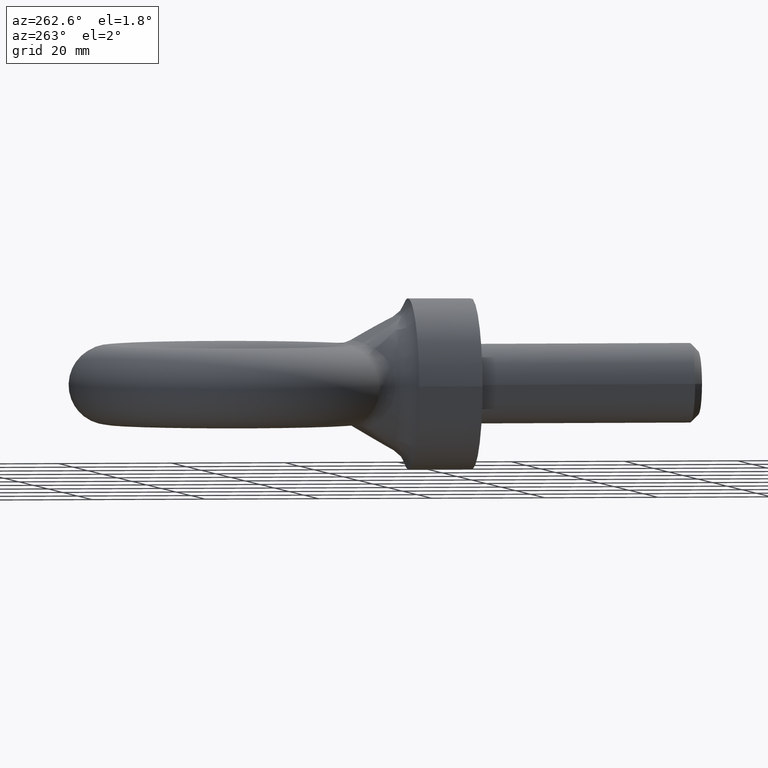
[diagram: clean part render]
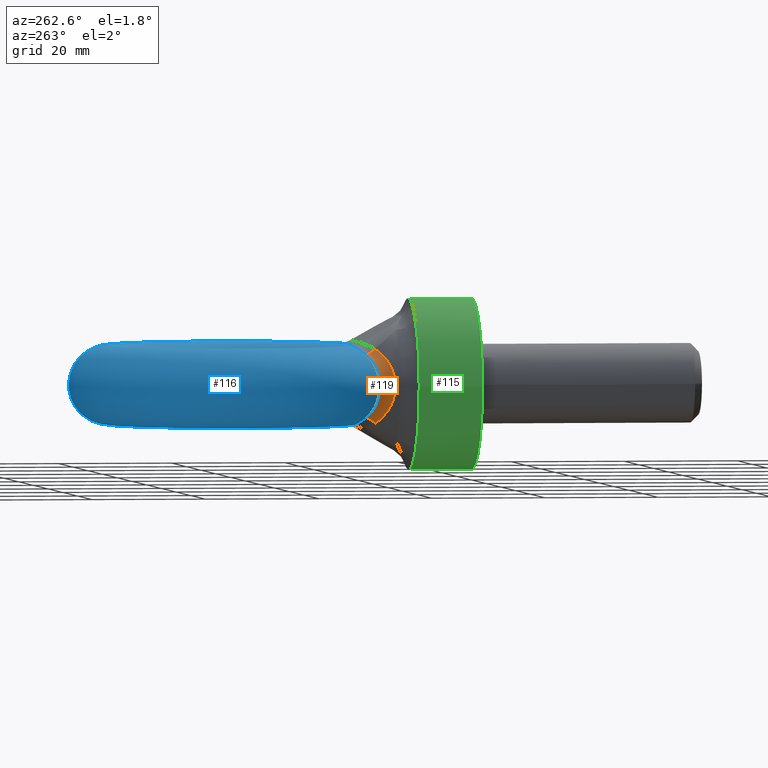
[diagram: same view with three faces highlighted in distinct colors, each labeled with its STEP entity id]
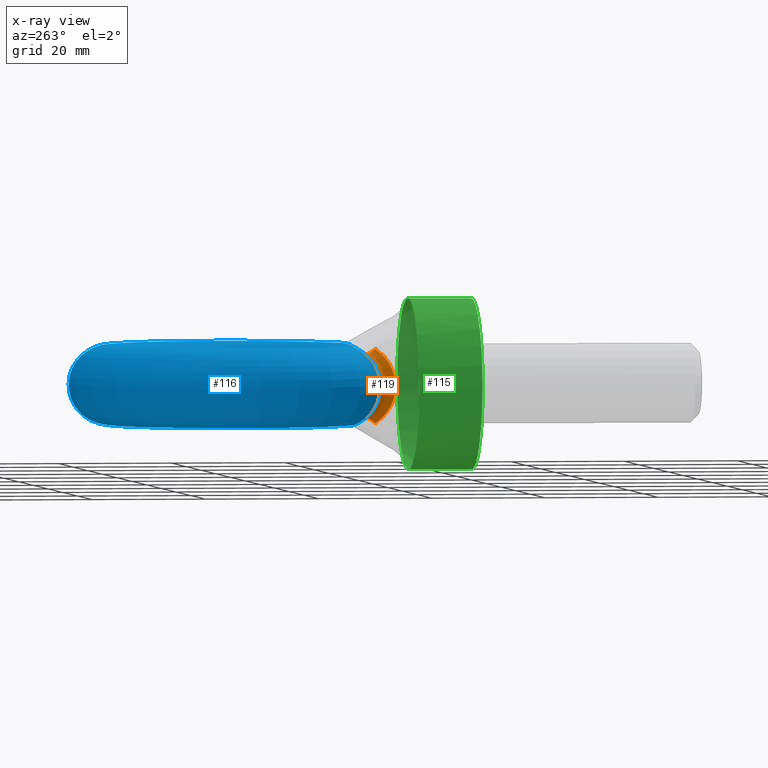
[diagram: x-ray of the same camera — body ghosted, the three highlighted faces saturated]
A machine part, auxiliary view with three faces highlighted in distinct colors.
The next image is the same camera in x-ray (body ghosted, the three faces saturated) — at least one of them is partly hidden behind the body in this view.
Their STEP definitions:

[orange] entity #119 — the highlighted face is a freeform B-spline surface patch.
#88=(
BOUNDED_SURFACE()
B_SPLINE_SURFACE(3,2,((#984,#985,#986),(#987,#988,#989),(#990,#991,#992),
(#993,#994,#995),(#996,#997,#998),(#999,#1000,#1001),(#1002,#1003,#1004),
(#1005,#1006,#1007),(#1008,#1009,#1010),(#1011,#1012,#1013)),
 .UNSPECIFIED.,.F.,.F.,.F.)
B_SPLINE_SURFACE_WITH_KNOTS((4,2,2,2,4),(3,3),(0.,0.25,0.5,0.75,1.),(0.,
1.),.UNSPECIFIED.)
GEOMETRIC_REPRESENTATION_ITEM()
RATIONAL_B_SPLINE_SURFACE(((1.,0.913392754709943,1.),(1.,0.904642203983729,
1.),(1.,0.893475314096022,1.),(1.,0.87656047780738,1.),(1.,0.871257490118609,
1.),(1.,0.871293341532296,1.),(1.,0.876662890575992,1.),(1.,0.893450768985948,
1.),(1.,0.904844948274037,1.),(1.,0.913392754709942,1.)))
REPRESENTATION_ITEM('')
SURFACE()
);
#119=ADVANCED_FACE('',(#150),#88,.T.);
#150=FACE_OUTER_BOUND('',#182,.T.);
#182=EDGE_LOOP('',(#312,#313,#314,#315));
#199=B_SPLINE_CURVE_WITH_KNOTS('',3,(#653,#654,#655,#656,#657,#658,#659,
#660,#661,#662),.UNSPECIFIED.,.F.,.F.,(4,2,2,2,4),(0.,0.25,0.5,0.75,1.),
 .UNSPECIFIED.);
#216=B_SPLINE_CURVE_WITH_KNOTS('',3,(#912,#913,#914,#915,#916,#917,#918,
#919,#920,#921),.UNSPECIFIED.,.F.,.F.,(4,2,2,2,4),(0.,0.25,0.5,0.75,1.),
 .UNSPECIFIED.);
#234=CIRCLE('',#506,3.5);
#237=CIRCLE('',#509,3.5);
#312=ORIENTED_EDGE('',*,*,#450,.T.);
#313=ORIENTED_EDGE('',*,*,#446,.F.);
#314=ORIENTED_EDGE('',*,*,#453,.F.);
#315=ORIENTED_EDGE('',*,*,#413,.F.);
#374=VERTEX_POINT('',#647);
#377=VERTEX_POINT('',#652);
#402=VERTEX_POINT('',#911);
#403=VERTEX_POINT('',#922);
#413=EDGE_CURVE('',#377,#374,#199,.T.);
#446=EDGE_CURVE('',#402,#403,#216,.T.);
#450=EDGE_CURVE('',#377,#403,#234,.T.);
#453=EDGE_CURVE('',#374,#402,#237,.T.);
#506=AXIS2_PLACEMENT_3D('',#944,#589,#590);
#509=AXIS2_PLACEMENT_3D('',#983,#595,#596);
#589=DIRECTION('',(0.356330166981346,0.703356259530989,0.61507624265421));
#590=DIRECTION('',(0.,-0.65828606888216,0.752767860309985));
#595=DIRECTION('',(-0.356330166981346,-0.70335625953099,0.61507624265421));
#596=DIRECTION('',(0.,-0.658286068882159,-0.752767860309985));
#647=CARTESIAN_POINT('',(-11.2486904393033,18.5002916994564,-6.51666812111264));
#652=CARTESIAN_POINT('',(-11.2486904393033,18.5002916994564,6.51666812111264));
#653=CARTESIAN_POINT('',(-11.2486904393033,18.5002916994564,6.51666812111264));
#654=CARTESIAN_POINT('',(-11.6623358228336,17.4639772845574,5.802657712035));
#655=CARTESIAN_POINT('',(-12.1136935065169,16.6208863515954,4.86058440901751));
#656=CARTESIAN_POINT('',(-12.7865535905403,15.4528421661689,2.62123986755395));
#657=CARTESIAN_POINT('',(-12.9991597736582,15.1338155355486,1.31565307058173));
#658=CARTESIAN_POINT('',(-13.0008348904542,15.1311973147023,-1.2989957561036));
#659=CARTESIAN_POINT('',(-12.7900726844899,15.4469000540264,-2.60807717894533));
#660=CARTESIAN_POINT('',(-12.1128189366211,16.6222383810343,-4.86494021078418));
#661=CARTESIAN_POINT('',(-11.6624406806828,17.4637145819987,-5.80247671256354));
#662=CARTESIAN_POINT('',(-11.2486904393033,18.5002916994564,-6.51666812111264));
#911=CARTESIAN_POINT('',(-13.1700984098487,20.3504339342132,-5.51410379478761));
#912=CARTESIAN_POINT('',(-13.1700984098487,20.3504339342132,-5.51410379478762));
#913=CARTESIAN_POINT('',(-13.5311499354151,19.5875743848866,-4.85720153579599));
#914=CARTESIAN_POINT('',(-13.9369447810974,19.0411662719369,-4.01839820938225));
#915=CARTESIAN_POINT('',(-14.5170115519335,18.3049590635211,-2.10782574195739));
#916=CARTESIAN_POINT('',(-14.6867699176338,18.1251309909643,-1.05019946336415));
#917=CARTESIAN_POINT('',(-14.6855358323789,18.1265176213641,1.0622971226889));
#918=CARTESIAN_POINT('',(-14.5134344280293,18.3093340917136,2.12119600553682));
#919=CARTESIAN_POINT('',(-13.9375313061204,19.0405877007732,4.01486983928252));
#920=CARTESIAN_POINT('',(-13.5314864124523,19.5868634483503,4.85658934470907));
#921=CARTESIAN_POINT('',(-13.1700984098487,20.3504339342132,5.51410379478761));
#922=CARTESIAN_POINT('',(-13.1700984098487,20.3504339342132,5.51410379478761));
#944=CARTESIAN_POINT('',(-14.2771840191158,18.5002916994564,8.27115569218142));
#983=CARTESIAN_POINT('',(-14.2771840191158,18.5002916994564,-8.27115569218142));
#984=CARTESIAN_POINT('',(-11.2486904393033,18.5002916994564,-6.51666812111264));
#985=CARTESIAN_POINT('',(-11.7986709065649,19.6091090087798,-5.56732408380537));
#986=CARTESIAN_POINT('',(-13.1700984098487,20.3504339342132,-5.51410379478762));
#987=CARTESIAN_POINT('',(-11.7021491259055,17.3642321927048,-5.73393432252081));
#988=CARTESIAN_POINT('',(-12.1312173262428,18.7036221519737,-4.8392547653287));
#989=CARTESIAN_POINT('',(-13.5343475397831,19.5808182379804,-4.851383780051));
#990=CARTESIAN_POINT('',(-12.1583174325722,16.5393674643555,-4.74950898722217));
#991=CARTESIAN_POINT('',(-12.4506670415446,18.0997739310594,-3.95066209335268));
#992=CARTESIAN_POINT('',(-13.9368035559345,19.0413504918593,-4.01881529692211));
#993=CARTESIAN_POINT('',(-12.8131895733227,15.4111267148406,-2.49092179102195));
#994=CARTESIAN_POINT('',(-12.8875955368394,17.287386271559,-2.02082466463799));
#995=CARTESIAN_POINT('',(-14.5170633925506,18.304888289145,-2.10770305389984));
#996=CARTESIAN_POINT('',(-13.0006483882137,15.1314888197801,-1.24113022471386));
#997=CARTESIAN_POINT('',(-13.0004062075089,17.1033762705007,-1.00935489759802));
#998=CARTESIAN_POINT('',(-14.6867374891539,18.1251674278515,-1.05018711321924));
#999=CARTESIAN_POINT('',(-12.9993480831083,15.1335212057881,1.25467611870513));
#1000=CARTESIAN_POINT('',(-12.9995915986211,17.1047728053591,1.02032917035512));
#1001=CARTESIAN_POINT('',(-14.6855686224941,18.1264807781399,1.06164902351955));
#1002=CARTESIAN_POINT('',(-12.8092944405484,15.4176597284355,2.50609331086425));
#1003=CARTESIAN_POINT('',(-12.8850008157813,17.2920953529502,2.03381468433674));
#1004=CARTESIAN_POINT('',(-14.5135966443351,18.3091408358002,2.12054049351642));
#1005=CARTESIAN_POINT('',(-12.1591975286093,16.5380297063062,4.74472793821555));
#1006=CARTESIAN_POINT('',(-12.4511890808524,18.0989169766656,3.9468485091517));
#1007=CARTESIAN_POINT('',(-13.9375988546563,19.0404892176048,4.01476979416649));
#1008=CARTESIAN_POINT('',(-11.6934923598457,17.3859201715593,5.7488771245483));
#1009=CARTESIAN_POINT('',(-12.1248163885331,18.7210511935878,4.85326882728907));
#1010=CARTESIAN_POINT('',(-13.527008710846,19.5963243244585,4.86473615017824));
#1011=CARTESIAN_POINT('',(-11.2486904393033,18.5002916994564,6.51666812111264));
#1012=CARTESIAN_POINT('',(-11.7986709065649,19.6091090087798,5.56732408380537));
#1013=CARTESIAN_POINT('',(-13.1700984098487,20.3504339342132,5.51410379478762));

[blue] entity #116 — the highlighted toroidal blend (fillet) surface has major radius 21.5 mm and minor (blend) radius 7 mm.
#71=TOROIDAL_SURFACE('',#505,21.5,7.);
#116=ADVANCED_FACE('',(#147),#71,.T.);
#147=FACE_OUTER_BOUND('',#179,.T.);
#179=EDGE_LOOP('',(#296,#297,#298,#299,#300,#301,#302,#303));
#212=B_SPLINE_CURVE_WITH_KNOTS('',3,(#872,#873,#874,#875,#876,#877,#878,
#879,#880,#881),.UNSPECIFIED.,.F.,.F.,(4,2,2,2,4),(0.,0.25,0.5,0.75,1.),
 .UNSPECIFIED.);
#213=B_SPLINE_CURVE_WITH_KNOTS('',3,(#884,#885,#886,#887,#888,#889),
 .UNSPECIFIED.,.F.,.F.,(4,2,4),(0.,0.5,1.),.UNSPECIFIED.);
#214=B_SPLINE_CURVE_WITH_KNOTS('',3,(#891,#892,#893,#894,#895,#896),
 .UNSPECIFIED.,.F.,.F.,(4,2,4),(0.,0.5,1.),.UNSPECIFIED.);
#215=B_SPLINE_CURVE_WITH_KNOTS('',3,(#898,#899,#900,#901,#902,#903,#904,
#905,#906,#907,#908,#909,#910),.UNSPECIFIED.,.F.,.F.,(4,3,3,3,4),(0.,0.280840307975704,
0.522848684688102,0.761255012749854,1.),.UNSPECIFIED.);
#216=B_SPLINE_CURVE_WITH_KNOTS('',3,(#912,#913,#914,#915,#916,#917,#918,
#919,#920,#921),.UNSPECIFIED.,.F.,.F.,(4,2,2,2,4),(0.,0.25,0.5,0.75,1.),
 .UNSPECIFIED.);
#217=B_SPLINE_CURVE_WITH_KNOTS('',3,(#923,#924,#925,#926,#927,#928),
 .UNSPECIFIED.,.F.,.F.,(4,2,4),(0.,0.5,1.),.UNSPECIFIED.);
#218=B_SPLINE_CURVE_WITH_KNOTS('',3,(#930,#931,#932,#933,#934,#935),
 .UNSPECIFIED.,.F.,.F.,(4,2,4),(0.,0.5,1.),.UNSPECIFIED.);
#219=B_SPLINE_CURVE_WITH_KNOTS('',3,(#937,#938,#939,#940,#941,#942),
 .UNSPECIFIED.,.F.,.F.,(4,2,4),(0.,0.5,1.),.UNSPECIFIED.);
#296=ORIENTED_EDGE('',*,*,#442,.T.);
#297=ORIENTED_EDGE('',*,*,#443,.T.);
#298=ORIENTED_EDGE('',*,*,#444,.T.);
#299=ORIENTED_EDGE('',*,*,#445,.T.);
#300=ORIENTED_EDGE('',*,*,#446,.T.);
#301=ORIENTED_EDGE('',*,*,#447,.T.);
#302=ORIENTED_EDGE('',*,*,#448,.T.);
#303=ORIENTED_EDGE('',*,*,#449,.T.);
#398=VERTEX_POINT('',#882);
#399=VERTEX_POINT('',#883);
#400=VERTEX_POINT('',#890);
#401=VERTEX_POINT('',#897);
#402=VERTEX_POINT('',#911);
#403=VERTEX_POINT('',#922);
#404=VERTEX_POINT('',#929);
#405=VERTEX_POINT('',#936);
#442=EDGE_CURVE('',#398,#399,#212,.T.);
#443=EDGE_CURVE('',#399,#400,#213,.T.);
#444=EDGE_CURVE('',#400,#401,#214,.T.);
#445=EDGE_CURVE('',#401,#402,#215,.T.);
#446=EDGE_CURVE('',#402,#403,#216,.T.);
#447=EDGE_CURVE('',#403,#404,#217,.T.);
#448=EDGE_CURVE('',#404,#405,#218,.T.);
#449=EDGE_CURVE('',#405,#398,#219,.T.);
#505=AXIS2_PLACEMENT_3D('',#943,#587,#588);
#587=DIRECTION('',(0.,0.,-1.));
#588=DIRECTION('',(-1.,0.,0.));
#872=CARTESIAN_POINT('',(13.1658812731394,20.2948465127557,5.54503703512496));
#873=CARTESIAN_POINT('',(13.529892104344,19.52081818958,4.88884919662904));
#874=CARTESIAN_POINT('',(13.9425796697594,18.965487287297,4.04541109530547));
#875=CARTESIAN_POINT('',(14.5315590313684,18.2188126527358,2.12622467167943));
#876=CARTESIAN_POINT('',(14.7051211267523,18.0353393761413,1.05900274885675));
#877=CARTESIAN_POINT('',(14.7038157129092,18.0368028946574,-1.07165763700157));
#878=CARTESIAN_POINT('',(14.52831178962,18.222758561639,-2.13841809478654));
#879=CARTESIAN_POINT('',(13.9427578500981,18.9654330575488,-4.04320971437735));
#880=CARTESIAN_POINT('',(13.5302431490205,19.5200717323347,-4.88821638236162));
#881=CARTESIAN_POINT('',(13.1658812731394,20.2948465127557,-5.54503703512496));
#882=CARTESIAN_POINT('',(13.1658812731394,20.2948465127557,5.54503703512496));
#883=CARTESIAN_POINT('',(13.1658812731394,20.2948465127557,-5.54503703512496));
#884=CARTESIAN_POINT('',(13.1658812731394,20.2948465127557,-5.54503703512496));
#885=CARTESIAN_POINT('',(12.8473966146005,20.972068521206,-6.11915665400878));
#886=CARTESIAN_POINT('',(12.1817945884874,21.584896344606,-6.51980493758271));
#887=CARTESIAN_POINT('',(10.5037060848712,22.3048580741653,-6.93370250207206));
#888=CARTESIAN_POINT('',(9.53562628736896,22.3857352263474,-6.96816695786057));
#889=CARTESIAN_POINT('',(8.60686106315679,22.2449329373672,-6.98384846590148));
#890=CARTESIAN_POINT('',(8.60686106315679,22.2449329373672,-6.98384846590148));
#891=CARTESIAN_POINT('',(8.60686106315679,22.2449329373672,-6.98384846590148));
#892=CARTESIAN_POINT('',(5.75616839332599,21.8127633829656,-7.03198028528785));
#893=CARTESIAN_POINT('',(2.87666469976028,21.7154208427805,-6.96217299208446));
#894=CARTESIAN_POINT('',(-2.87598533086142,21.7203194098577,-6.96404726392662));
#895=CARTESIAN_POINT('',(-5.74685714874334,21.8241218982481,-7.03385250214567));
#896=CARTESIAN_POINT('',(-8.59981624641321,22.2696159495021,-6.98100925306399));
#897=CARTESIAN_POINT('',(-8.59981624641321,22.2696159495021,-6.98100925306399));
#898=CARTESIAN_POINT('',(-8.59981624641321,22.2696159495021,-6.98100925306399));
#899=CARTESIAN_POINT('',(-9.11716267482197,22.3504004081653,-6.97142682820545));
#900=CARTESIAN_POINT('',(-9.65180396622739,22.3679956579896,-6.95359400052154));
#901=CARTESIAN_POINT('',(-10.1687619409801,22.3001530462646,-6.9044298775362));
#902=CARTESIAN_POINT('',(-10.6139968206228,22.2417229638571,-6.86208681785017));
#903=CARTESIAN_POINT('',(-11.0552689434911,22.1180621733248,-6.79400025710865));
#904=CARTESIAN_POINT('',(-11.4535099128821,21.9369329292113,-6.68428501427673));
#905=CARTESIAN_POINT('',(-11.8449758079838,21.7588851462711,-6.57643630195767));
#906=CARTESIAN_POINT('',(-12.2054619274962,21.5203377449274,-6.42391943907075));
#907=CARTESIAN_POINT('',(-12.4969079447018,21.2495397496721,-6.22820135199829));
#908=CARTESIAN_POINT('',(-12.7885442363828,20.978564960282,-6.03235548772482));
#909=CARTESIAN_POINT('',(-13.0203236689828,20.6668904043479,-5.78660607949714));
#910=CARTESIAN_POINT('',(-13.1700984098487,20.3504339342132,-5.51410379478761));
#911=CARTESIAN_POINT('',(-13.1700984098487,20.3504339342132,-5.51410379478761));
#912=CARTESIAN_POINT('',(-13.1700984098487,20.3504339342132,-5.51410379478762));
#913=CARTESIAN_POINT('',(-13.5311499354151,19.5875743848866,-4.85720153579599));
#914=CARTESIAN_POINT('',(-13.9369447810974,19.0411662719369,-4.01839820938225));
#915=CARTESIAN_POINT('',(-14.5170115519335,18.3049590635211,-2.10782574195739));
#916=CARTESIAN_POINT('',(-14.6867699176338,18.1251309909643,-1.05019946336415));
#917=CARTESIAN_POINT('',(-14.6855358323789,18.1265176213641,1.0622971226889));
#918=CARTESIAN_POINT('',(-14.5134344280293,18.3093340917136,2.12119600553682));
#919=CARTESIAN_POINT('',(-13.9375313061204,19.0405877007732,4.01486983928252));
#920=CARTESIAN_POINT('',(-13.5314864124523,19.5868634483503,4.85658934470907));
#921=CARTESIAN_POINT('',(-13.1700984098487,20.3504339342132,5.51410379478761));
#922=CARTESIAN_POINT('',(-13.1700984098487,20.3504339342132,5.51410379478761));
#923=CARTESIAN_POINT('',(-13.1700984098487,20.3504339342132,5.51410379478761));
#924=CARTESIAN_POINT('',(-12.8511854040879,21.0242597308704,6.09433863406007));
#925=CARTESIAN_POINT('',(-12.1827850626025,21.6321939115679,6.50190764592058));
#926=CARTESIAN_POINT('',(-10.4986300181459,22.3403781049844,6.92611218871975));
#927=CARTESIAN_POINT('',(-9.52925141446133,22.4147487131403,6.9637940135849));
#928=CARTESIAN_POINT('',(-8.59981624641322,22.2696159495021,6.98100925306399));
#929=CARTESIAN_POINT('',(-8.59981624641322,22.2696159495021,6.98100925306399));
#930=CARTESIAN_POINT('',(-8.59981624641322,22.2696159495021,6.98100925306399));
#931=CARTESIAN_POINT('',(-5.75098490491176,21.8247664538674,7.03377604677429));
#932=CARTESIAN_POINT('',(-2.87176447439585,21.7201906242852,6.96399801778782));
#933=CARTESIAN_POINT('',(2.88097293538379,21.7155425513052,6.9622195303844));
#934=CARTESIAN_POINT('',(5.75226601604787,21.8121717763476,7.03204617401739));
#935=CARTESIAN_POINT('',(8.60686106315678,22.2449329373672,6.98384846590148));
#936=CARTESIAN_POINT('',(8.60686106315678,22.2449329373672,6.98384846590148));
#937=CARTESIAN_POINT('',(8.60686106315678,22.2449329373672,6.98384846590148));
#938=CARTESIAN_POINT('',(9.53622857167767,22.385826533609,6.96815678873926));
#939=CARTESIAN_POINT('',(10.4981693964452,22.306655316339,6.93468359398045));
#940=CARTESIAN_POINT('',(12.1827528388445,21.5850618512912,6.51995206536584));
#941=CARTESIAN_POINT('',(12.8469159344501,20.9730906337886,6.12002315698569));
#942=CARTESIAN_POINT('',(13.1658812731394,20.2948465127557,5.54503703512496));
#943=CARTESIAN_POINT('',(0.0837289890841773,42.5,0.));

[green] entity #115 — the highlighted cylindrical surface (bore or boss wall) has radius 15 mm, axis along (0, 1, 0).
#78=FACE_BOUND('',#177,.T.);
#79=FACE_BOUND('',#178,.T.);
#115=ADVANCED_FACE('',(#78,#79),#137,.T.);
#137=CYLINDRICAL_SURFACE('',#504,15.);
#177=EDGE_LOOP('',(#287,#288,#289,#290,#291,#292,#293,#294));
#178=EDGE_LOOP('',(#295));
#225=CIRCLE('',#494,15.);
#226=CIRCLE('',#496,15.);
#227=CIRCLE('',#497,15.);
#228=CIRCLE('',#498,15.);
#229=CIRCLE('',#499,15.);
#230=CIRCLE('',#500,15.);
#231=CIRCLE('',#501,15.);
#232=CIRCLE('',#502,15.);
#233=CIRCLE('',#503,15.);
#287=ORIENTED_EDGE('',*,*,#434,.T.);
#288=ORIENTED_EDGE('',*,*,#435,.T.);
#289=ORIENTED_EDGE('',*,*,#436,.F.);
#290=ORIENTED_EDGE('',*,*,#437,.F.);
#291=ORIENTED_EDGE('',*,*,#438,.F.);
#292=ORIENTED_EDGE('',*,*,#439,.F.);
#293=ORIENTED_EDGE('',*,*,#440,.T.);
#294=ORIENTED_EDGE('',*,*,#441,.T.);
#295=ORIENTED_EDGE('',*,*,#433,.T.);
#389=VERTEX_POINT('',#853);
#390=VERTEX_POINT('',#856);
#391=VERTEX_POINT('',#857);
#392=VERTEX_POINT('',#859);
#393=VERTEX_POINT('',#861);
#394=VERTEX_POINT('',#863);
#395=VERTEX_POINT('',#865);
#396=VERTEX_POINT('',#867);
#397=VERTEX_POINT('',#869);
#433=EDGE_CURVE('',#389,#389,#225,.T.);
#434=EDGE_CURVE('',#390,#391,#226,.T.);
#435=EDGE_CURVE('',#391,#392,#227,.T.);
#436=EDGE_CURVE('',#393,#392,#228,.T.);
#437=EDGE_CURVE('',#394,#393,#229,.T.);
#438=EDGE_CURVE('',#395,#394,#230,.T.);
#439=EDGE_CURVE('',#396,#395,#231,.T.);
#440=EDGE_CURVE('',#396,#397,#232,.T.);
#441=EDGE_CURVE('',#397,#390,#233,.T.);
#494=AXIS2_PLACEMENT_3D('',#852,#565,#566);
#496=AXIS2_PLACEMENT_3D('',#855,#569,#570);
#497=AXIS2_PLACEMENT_3D('',#858,#571,#572);
#498=AXIS2_PLACEMENT_3D('',#860,#573,#574);
#499=AXIS2_PLACEMENT_3D('',#862,#575,#576);
#500=AXIS2_PLACEMENT_3D('',#864,#577,#578);
#501=AXIS2_PLACEMENT_3D('',#866,#579,#580);
#502=AXIS2_PLACEMENT_3D('',#868,#581,#582);
#503=AXIS2_PLACEMENT_3D('',#870,#583,#584);
#504=AXIS2_PLACEMENT_3D('',#871,#585,#586);
#565=DIRECTION('',(2.77823198355395E-18,1.,0.));
#566=DIRECTION('',(-1.,2.77823198355395E-18,0.));
#569=DIRECTION('',(-2.77823198355395E-18,-1.,0.));
#570=DIRECTION('',(-1.,0.,0.));
#571=DIRECTION('',(-2.77823198355395E-18,-1.,0.));
#572=DIRECTION('',(-1.,0.,0.));
#573=DIRECTION('',(2.77823198355395E-18,1.,0.));
#574=DIRECTION('',(-1.,0.,0.));
#575=DIRECTION('',(2.77823198355395E-18,1.,0.));
#576=DIRECTION('',(-1.,0.,0.));
#577=DIRECTION('',(2.77823198355395E-18,1.,0.));
#578=DIRECTION('',(-1.,0.,0.));
#579=DIRECTION('',(2.77823198355395E-18,1.,0.));
#580=DIRECTION('',(-1.,0.,0.));
#581=DIRECTION('',(-2.77823198355395E-18,-1.,0.));
#582=DIRECTION('',(-1.,0.,0.));
#583=DIRECTION('',(-2.77823198355395E-18,-1.,0.));
#584=DIRECTION('',(-1.,0.,0.));
#585=DIRECTION('',(2.77823198355395E-18,1.,0.));
#586=DIRECTION('',(-1.,0.,0.));
#852=CARTESIAN_POINT('',(-5.83428716546329E-17,0.,0.));
#853=CARTESIAN_POINT('',(-15.,4.16734797533092E-17,0.));
#855=CARTESIAN_POINT('',(-2.72266734388287E-17,11.2,0.));
#856=CARTESIAN_POINT('',(-3.26149563523624,11.2,14.6411285842771));
#857=CARTESIAN_POINT('',(-9.84225912969825,11.2,11.319449422294));
#858=CARTESIAN_POINT('',(-2.72266734388287E-17,11.2,0.));
#859=CARTESIAN_POINT('',(-9.84225912969825,11.2,-11.319449422294));
#860=CARTESIAN_POINT('',(-2.72266734388287E-17,11.2,0.));
#861=CARTESIAN_POINT('',(-3.26149563523624,11.2,-14.6411285842771));
#862=CARTESIAN_POINT('',(-2.72266734388287E-17,11.2,0.));
#863=CARTESIAN_POINT('',(3.26149563523624,11.2,-14.6411285842771));
#864=CARTESIAN_POINT('',(-2.72266734388287E-17,11.2,0.));
#865=CARTESIAN_POINT('',(9.84225912969825,11.2,-11.319449422294));
#866=CARTESIAN_POINT('',(-2.72266734388287E-17,11.2,0.));
#867=CARTESIAN_POINT('',(9.84225912969825,11.2,11.319449422294));
#868=CARTESIAN_POINT('',(-2.72266734388287E-17,11.2,0.));
#869=CARTESIAN_POINT('',(3.26149563523623,11.2,14.6411285842771));
#870=CARTESIAN_POINT('',(-2.72266734388287E-17,11.2,0.));
#871=CARTESIAN_POINT('',(-1.69472150996791E-16,-40.,0.));